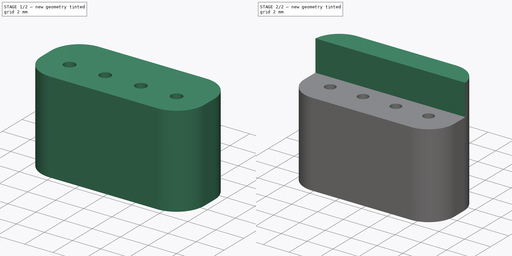
[diagram: build sequence overview — one tinted view per stage of 2, left to right]
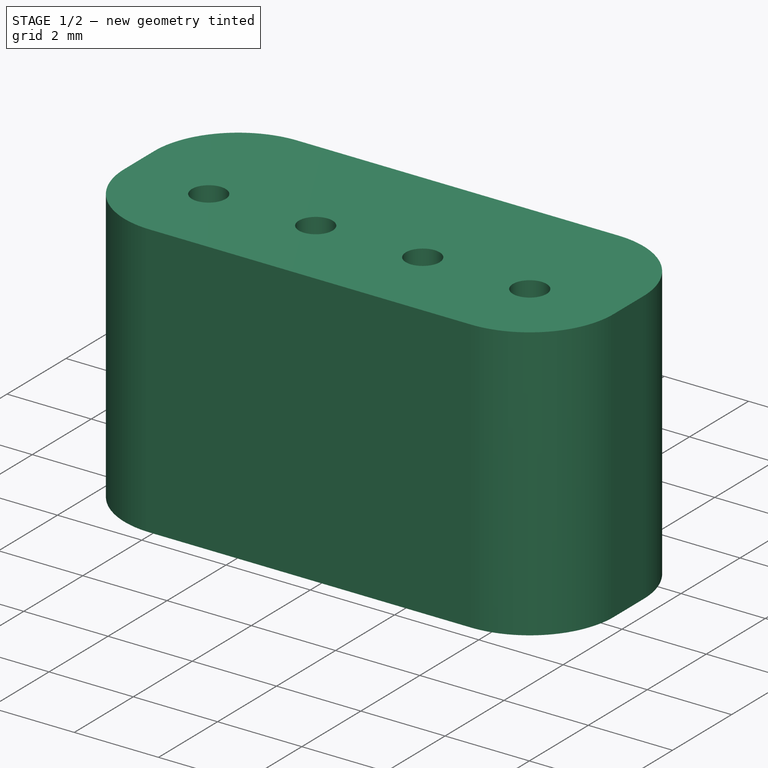
[diagram: stage 1 of 2 — iso view after this stage's code; geometry added in this stage tinted green]
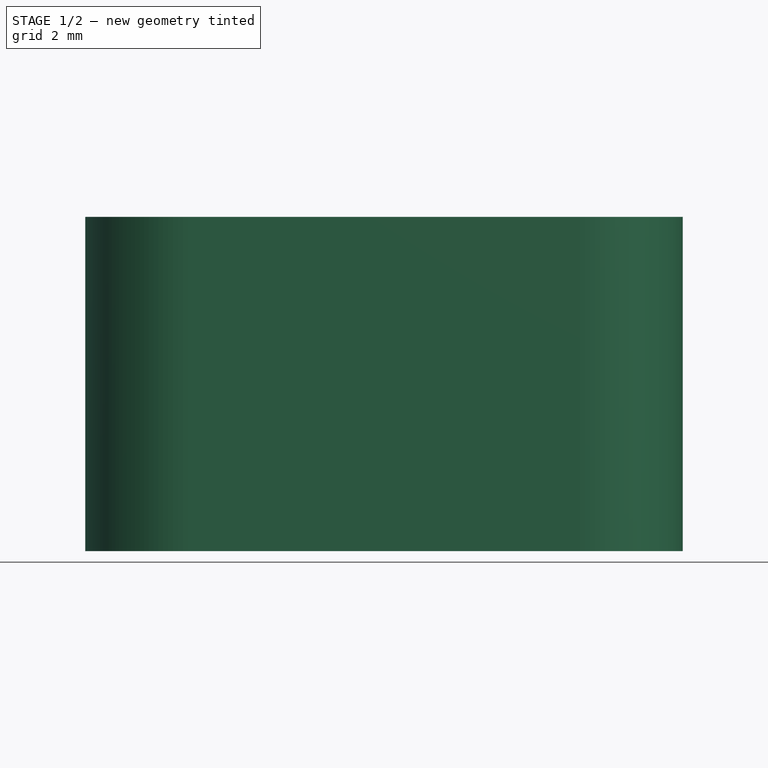
[diagram: stage 1 of 2 — front view after this stage's code; geometry added in this stage tinted green]
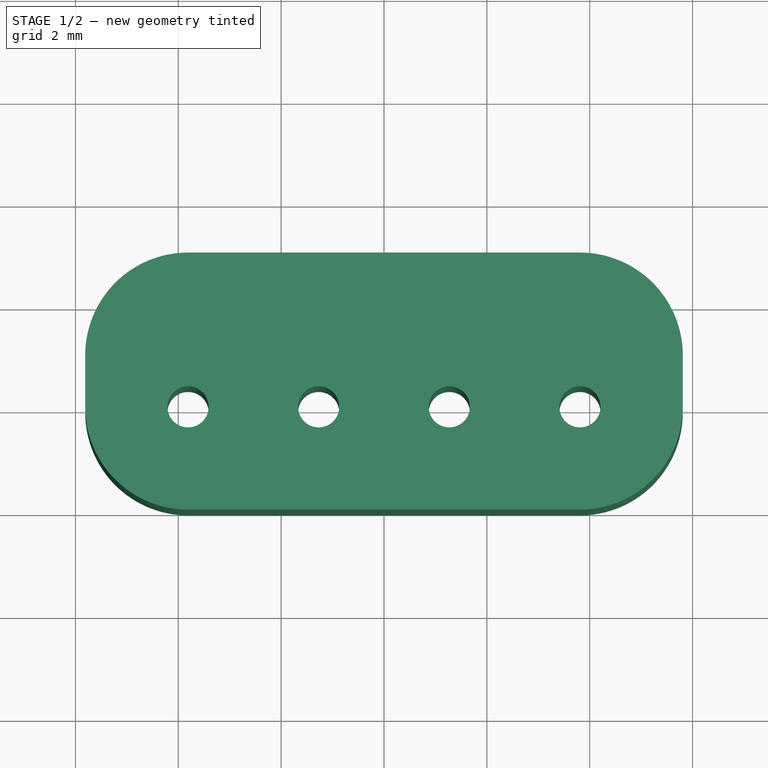
[diagram: stage 1 of 2 — top view after this stage's code; geometry added in this stage tinted green]
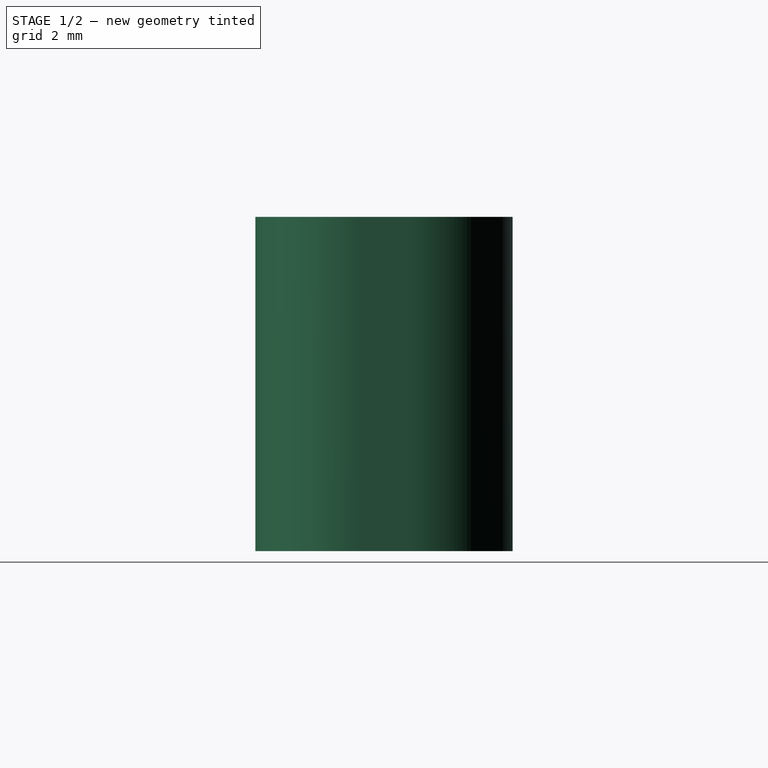
[diagram: stage 1 of 2 — right view after this stage's code; geometry added in this stage tinted green]
FCSTD DOCUMENT  (FreeCAD 1.0R39319 (Git))
Label: StLinkFlasherJig
License: All rights reserved
LicenseURL: https://en.wikipedia.org/wiki/All_rights_reserved
objects: Sketcher::SketchObject×2, PartDesign::Pad×2, PartDesign::Body×1
note: 11 computed .brp shape members not serialized (recipe doc carries the construction recipe); baked Part::Feature solids carry a one-line shape summary decoded from their .brp

FEATURE [Sketcher::SketchObject] Sketch
  ArcFitTolerance = 1e-06
  AttachmentSupport = -> [XY_Plane]
  FullyConstrained = true
  MakeInternals = false
  MapMode = 5
  sketch-geometry (16):
    g0: LineSegment StartX=-3.81 StartY=-2 StartZ=0 EndX=3.81 EndY=-2 EndZ=0
    g1: LineSegment StartX=3.81 StartY=3 StartZ=0 EndX=-3.81 EndY=3 EndZ=0
    g2: Circle CenterX=-3.81 CenterY=0 CenterZ=0 NormalX=0 NormalY=0 NormalZ=1 AngleXU=0 Radius=0.4
    g3: LineSegment [constr] StartX=-3.81 StartY=0 StartZ=0 EndX=-1.27 EndY=0 EndZ=0
    g4: Circle CenterX=-1.27 CenterY=0 CenterZ=0 NormalX=0 NormalY=0 NormalZ=1 AngleXU=0 Radius=0.4
    g5: Circle CenterX=1.27 CenterY=0 CenterZ=0 NormalX=0 NormalY=0 NormalZ=1 AngleXU=0 Radius=0.4
    g6: Circle CenterX=3.81 CenterY=0 CenterZ=0 NormalX=0 NormalY=0 NormalZ=1 AngleXU=0 Radius=0.4
    g7: LineSegment [constr] StartX=-1.27 StartY=0 StartZ=0 EndX=1.27 EndY=0 EndZ=0
    g8: LineSegment [constr] StartX=1.27 StartY=0 StartZ=0 EndX=3.81 EndY=0 EndZ=0
    g9: ArcOfCircle CenterX=-3.81 CenterY=0 CenterZ=0 NormalX=0 NormalY=0 NormalZ=1 AngleXU=0 Radius=2 StartAngle=3.14159 EndAngle=4.71239
    g10: ArcOfCircle CenterX=3.81 CenterY=0 CenterZ=0 NormalX=0 NormalY=0 NormalZ=1 AngleXU=0 Radius=2 StartAngle=4.71239 EndAngle=6.28319
    g11: LineSegment [constr] StartX=-5.81 StartY=0 StartZ=0 EndX=-4.21 EndY=0 EndZ=0
    g12: LineSegment StartX=-5.81 StartY=0 StartZ=0 EndX=-5.81 EndY=1 EndZ=0
    g13: LineSegment StartX=5.81 StartY=-5e-16 StartZ=0 EndX=5.81 EndY=1 EndZ=0
    g14: ArcOfCircle CenterX=-3.81 CenterY=1 CenterZ=0 NormalX=0 NormalY=0 NormalZ=1 AngleXU=0 Radius=2 StartAngle=1.5708 EndAngle=3.14159
    g15: ArcOfCircle CenterX=3.81 CenterY=1 CenterZ=0 NormalX=0 NormalY=0 NormalZ=1 AngleXU=0 Radius=2 StartAngle=0 EndAngle=1.5708
  constraints (40):
    c: Horizontal(g0)
    c: Horizontal(g1)
    c: Diameter(g2) = 0.8
    c: Coincident(g3,g2)
    c: Horizontal(g3)
    c: DistanceX(g3,g3) = 2.54
    c: Coincident(g4,g3)
    c: Equal(g2,g4)
    c: Equal(g4,g5)
    c: Equal(g5,g6)
    c: Coincident(g7,g3)
    c: Coincident(g7,g5)
    c: Horizontal(g7)
    c: Coincident(g8,g5)
    c: Coincident(g8,g6)
    c: Horizontal(g8)
    c: Equal(g3,g7)
    c: Equal(g7,g8)
    c: Coincident(g10,g6)
    c: Coincident(g9,g2)
    c: Tangent(g0,g9) = -1.5708
    c: Symmetric(g2,g6,g-1)
    c: PointOnObject(g11,g2)
    c: Horizontal(g11)
    c: PointOnObject(g2,g11)
    c: DistanceX(g11,g11) = 1.6
    c: Coincident(g9,g11)
    c: PointOnObject(g10,g8)
    c: Tangent(g0,g10) = -1.5708
    c: Distance(g12) = 1
    c: Coincident(g12,g9)
    c: Vertical(g12)
    c: Coincident(g13,g10)
    c: Vertical(g13)
    c: Equal(g13,g12)
    c: Equal(g10,g15)
    c: Tangent(g12,g14) = 1.5708
    c: Tangent(g1,g14) = -1.5708
    c: Tangent(g1,g15) = -1.5708
    c: Tangent(g13,g15) = -1.5708
FEATURE [PartDesign::Pad] Pad
  Direction = (0,0,1)
  Length = 6.5
  Length2 = 10
  Profile = -> Sketch
  ReferenceAxis = -> Sketch [N_Axis]
  Refine = true
  Suppressed = false
  Type = 0
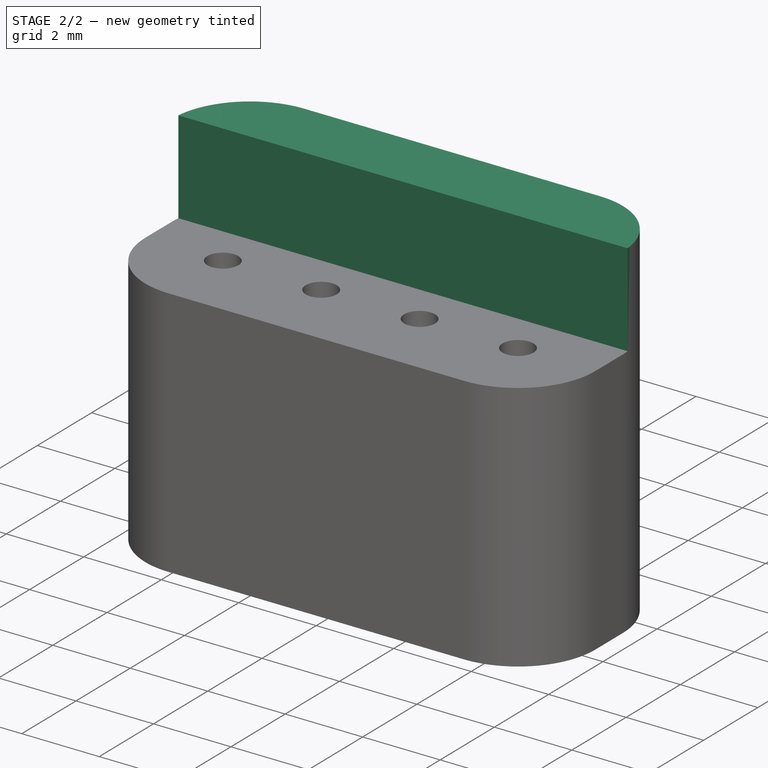
[diagram: stage 2 of 2 — iso view after this stage's code; geometry added in this stage tinted green]
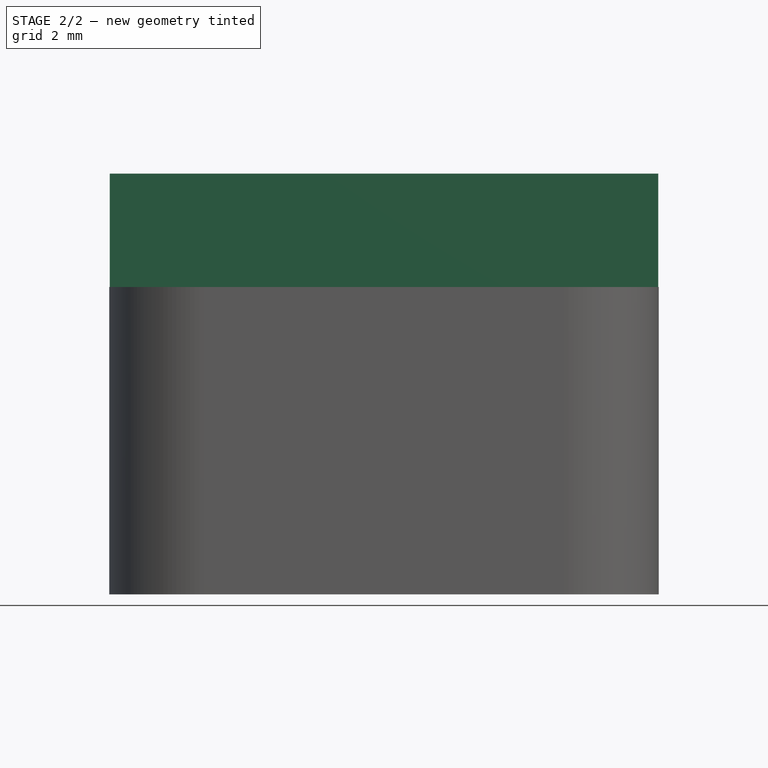
[diagram: stage 2 of 2 — front view after this stage's code; geometry added in this stage tinted green]
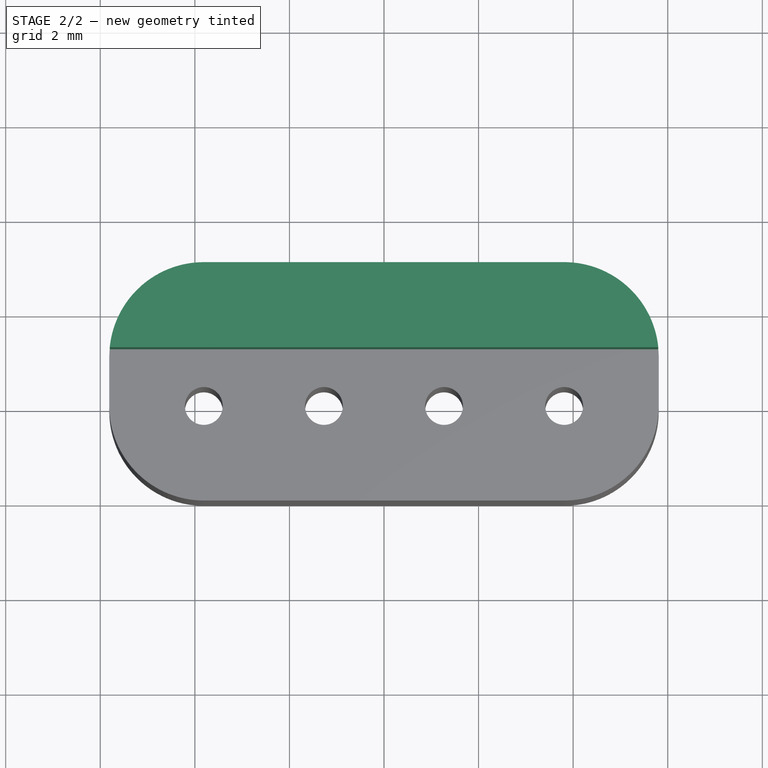
[diagram: stage 2 of 2 — top view after this stage's code; geometry added in this stage tinted green]
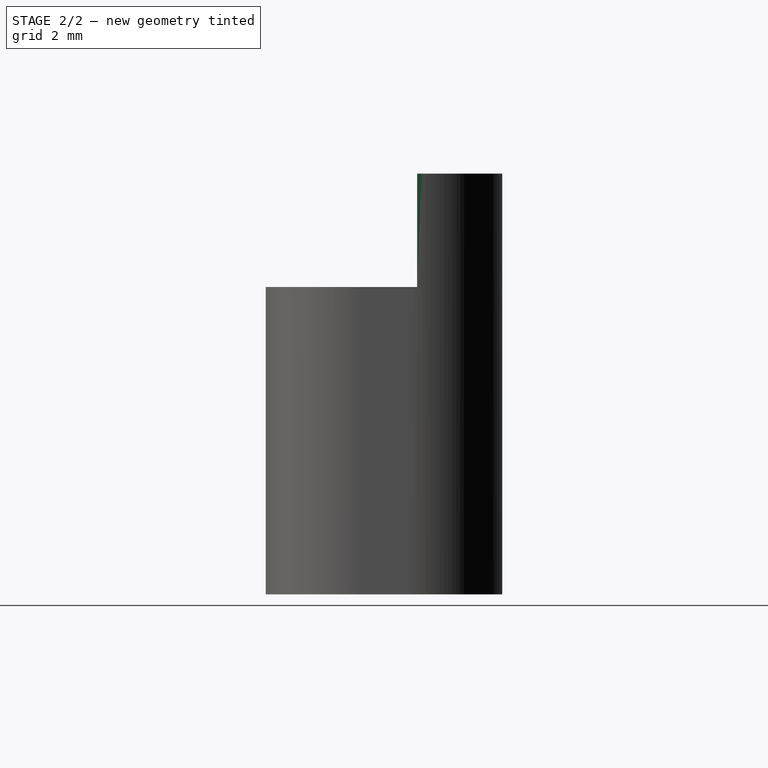
[diagram: stage 2 of 2 — right view after this stage's code; geometry added in this stage tinted green]
FEATURE [Sketcher::SketchObject] Sketch001
  ArcFitTolerance = 1e-06
  AttachmentOffset = pos=(0,0,6.5) rot=(0,0,1;0rad)
  AttachmentSupport = -> [XY_Plane]
  ExternalGeometry = -> [Sketch]
  FullyConstrained = true
  MakeInternals = false
  MapMode = 5
  Placement = pos=(0,0,6.5) rot=(0,0,1;0rad)
  expr: .AttachmentOffset.Base.z = <<Pad>>.Length
  sketch-geometry (4):
    g0: ArcOfCircle CenterX=-3.81 CenterY=1 CenterZ=0 NormalX=0 NormalY=0 NormalZ=1 AngleXU=0 Radius=2 StartAngle=1.5708 EndAngle=3.04143
    g1: ArcOfCircle CenterX=3.81 CenterY=1 CenterZ=0 NormalX=0 NormalY=0 NormalZ=1 AngleXU=0 Radius=2 StartAngle=0.100167 EndAngle=1.5708
    g2: LineSegment StartX=-5.79997 StartY=1.2 StartZ=0 EndX=5.79997 EndY=1.2 EndZ=0
    g3: LineSegment StartX=-3.81 StartY=3 StartZ=0 EndX=3.81 EndY=3 EndZ=0
  constraints (10):
    c: Coincident(g2,g0)
    c: Coincident(g2,g1)
    c: Horizontal(g2)
    c: Coincident(g3,g1)
    c: Coincident(g0,g-3)
    c: Coincident(g1,g-4)
    c: Coincident(g1,g-4)
    c: Coincident(g0,g-3)
    c: Coincident(g3,g0)
    c: DistanceY(g-5,g0) = 1.2
FEATURE [PartDesign::Pad] Pad001
  BaseFeature = -> Pad
  Direction = (0,0,1)
  Length = 2.4
  Length2 = 10
  Profile = -> Sketch001
  ReferenceAxis = -> Sketch001 [N_Axis]
  Refine = true
  Suppressed = false
  Type = 0
FEATURE [PartDesign::Body] Body
  AllowCompound = false
  Group = -> [Sketch,Pad,Sketch001,Pad001]
  Origin = -> Origin
  Tip = -> Pad001
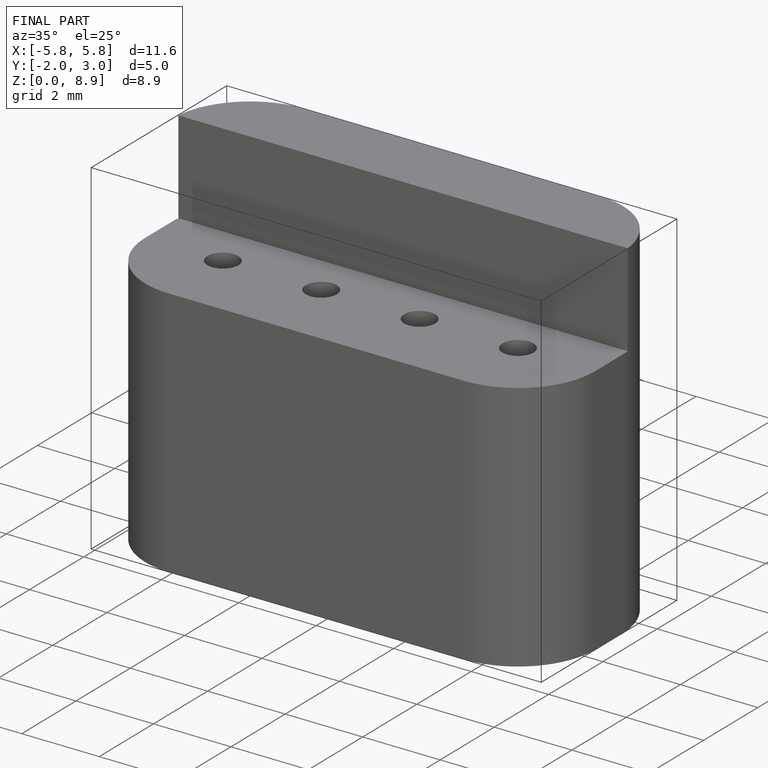
[diagram: finished part — iso view with bounding-box wireframe]
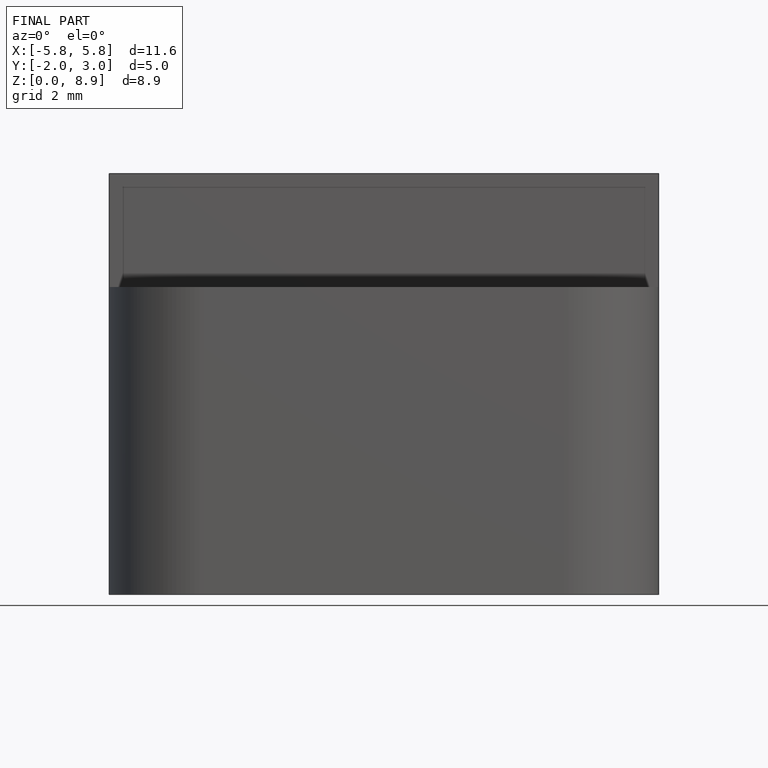
[diagram: finished part — front view with bounding-box wireframe]
